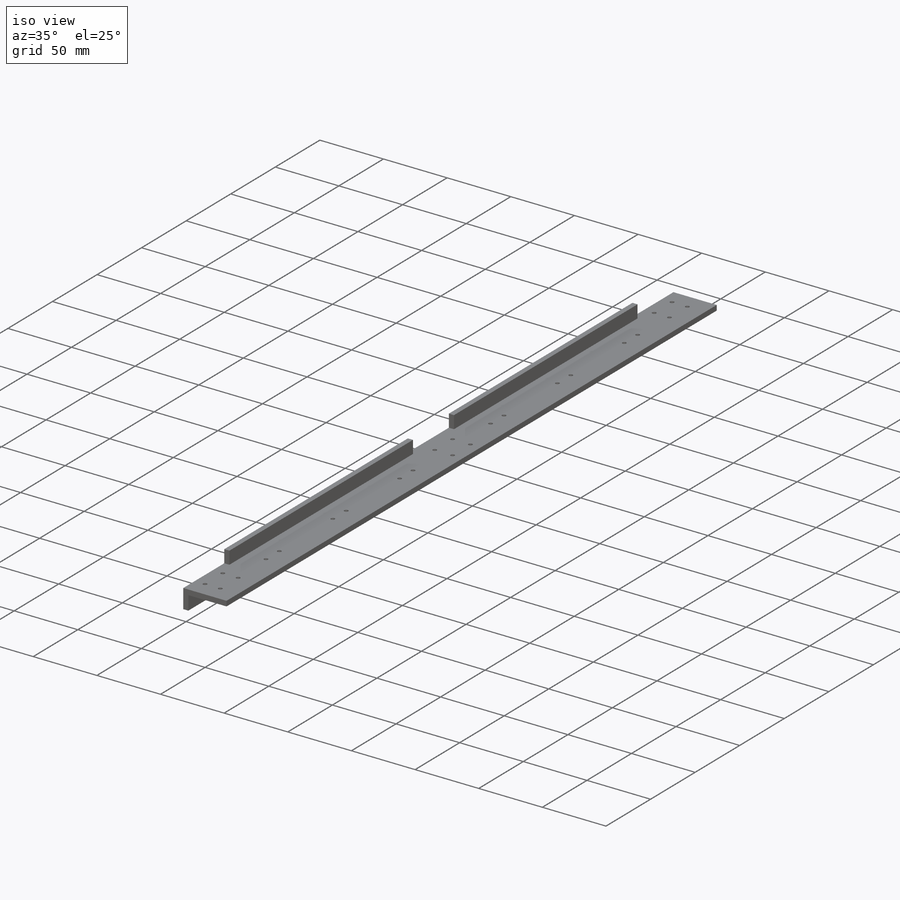
[diagram: iso view]
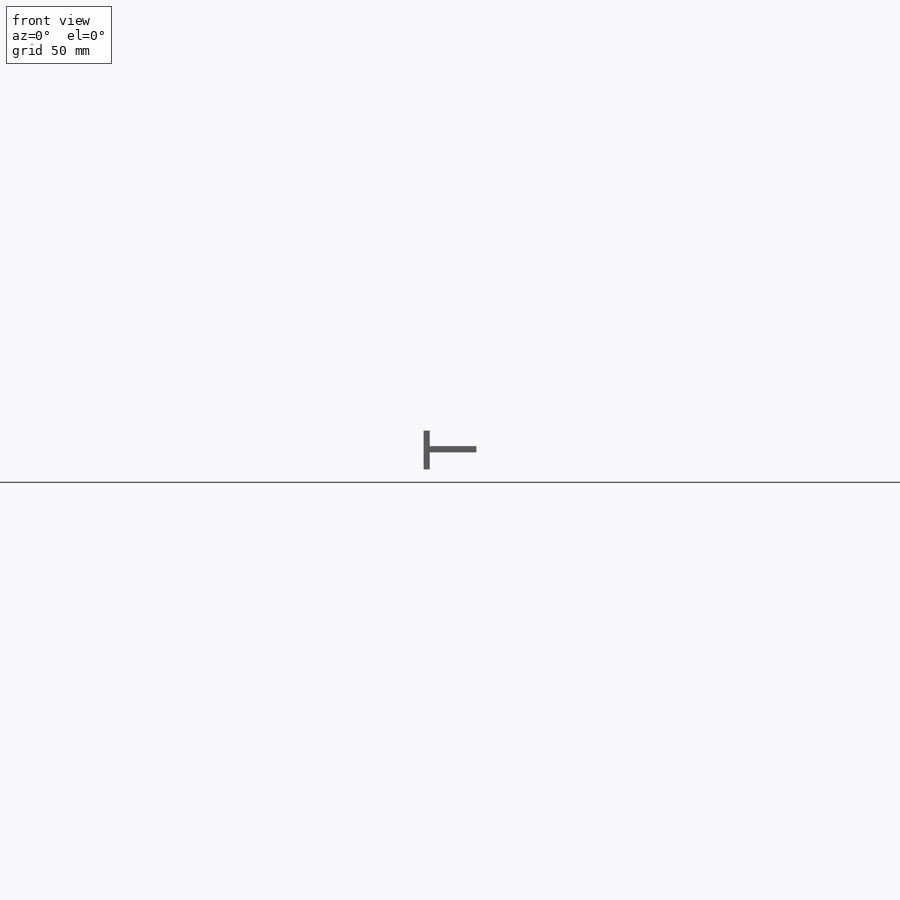
[diagram: front view]
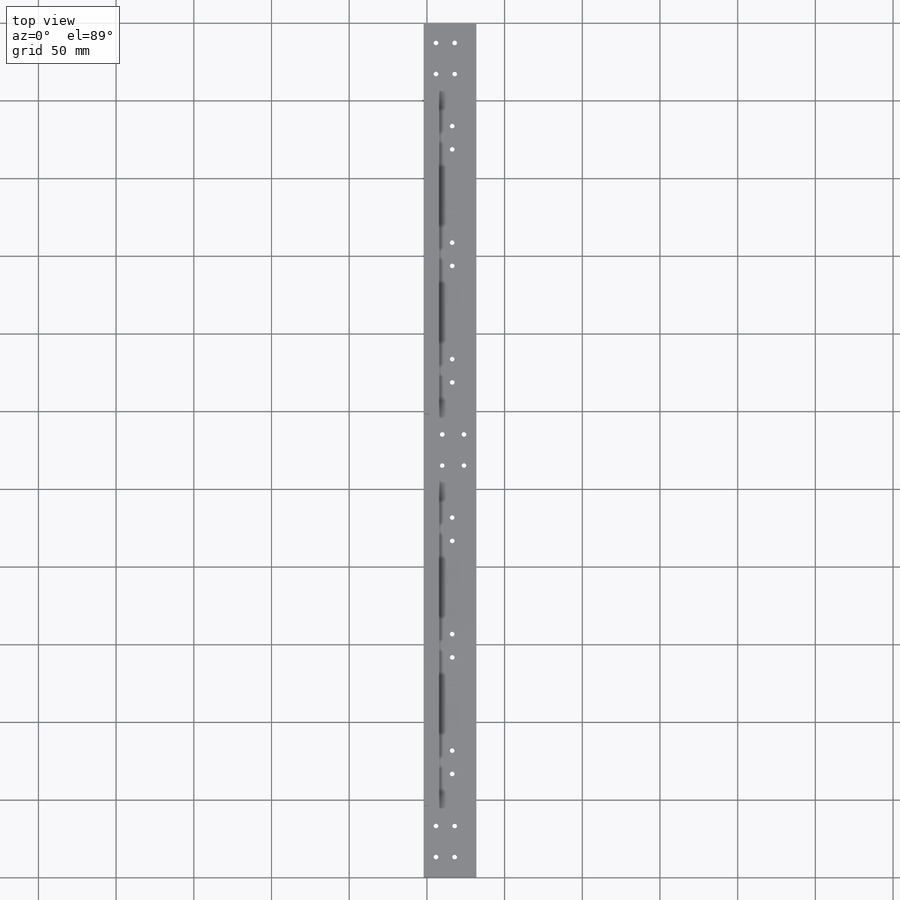
[diagram: top view]
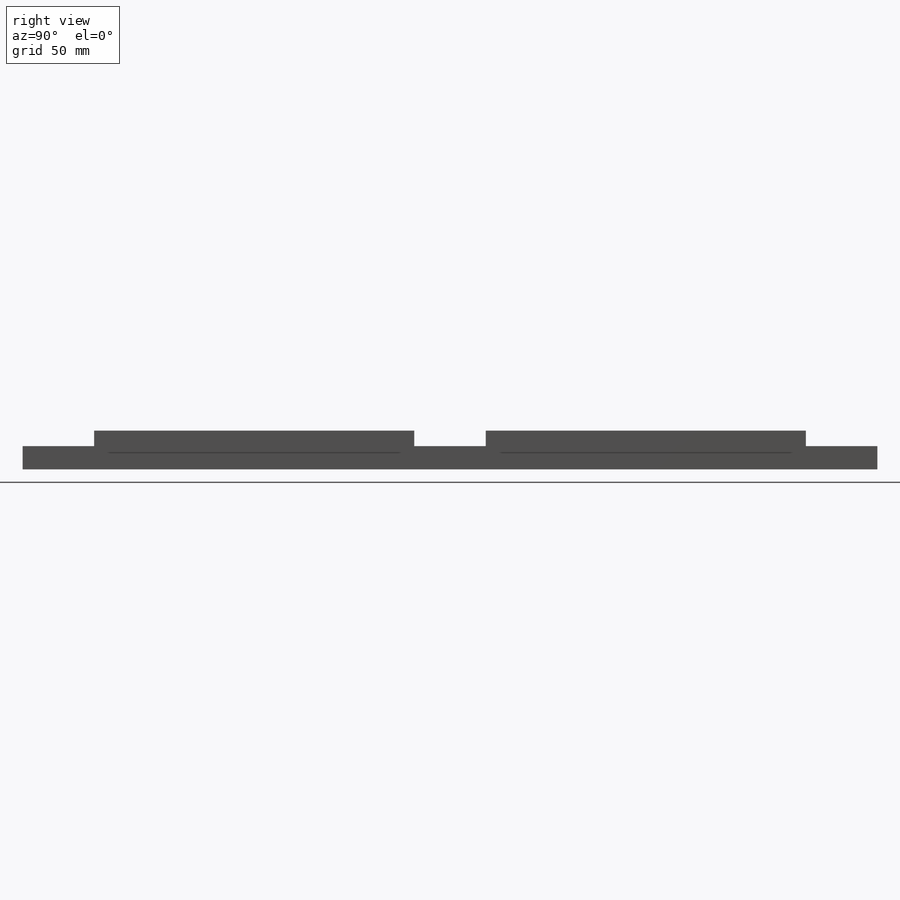
[diagram: right view]
SOLIDWORKS PART (.sldprt)
format: sldprt  version: not decoded by parser v0  size: 320,000 bytes
history: native  units: mm
features: sketch x11, hole x3, mirror x3, cut_extrude x2, material x1, extrude x1, plane x1 (+12 scaffold rows collapsed)
feature tree (34):
  scaffold x12  (default folders/planes/origin — collapsed)
  material  "Material <not specified>"
  sketch  "Sketch1"  dims[c1.D1=4.0mm c1.D2=4.0mm c1.D3=4.0mm c1.D4=~9.929886mm c2.D4=90.0deg c3.D4=30.0mm c3.D5=10.0mm c3.D6=25.0mm]
  extrude  "Boss-Extrude1"  Depth=550mm
  sketch  "Sketch2"  dims[D1=20.0mm D2=46.0mm]
  cut_extrude  "Cut-Extrude1"  [1 undecoded]
  sketch  "Sketch3"  dims[c1.D1=~23.788185mm c1.D2=~66.929273mm c2.D1=23.0mm]
  cut_extrude  "Cut-Extrude2"  [1 undecoded]
  hole  "Ø3.0mm Dowel Hole1"  Diameter=3mm Depth=15mm
  sketch  "Sketch7"  dims[c1.D1=4.0mm c1.D2=14.0mm c1.D3=14.0mm c1.D4=14.0mm c2.D3=20.0mm c2.D4=13.0mm]
  sketch  "Sketch6"  dims[hole-wizard template sketch: 50 standard entries collapsed; hole parameters above]
  sketch  "Sketch8"  dims[D1=~98.03844mm]
  sketch  "Sketch9"  dims[D1=~1.024321mm]
  plane  "Plane1"
  mirror  "Mirror2"
  hole  "Ø3.0mm Dowel Hole2"  Diameter=3mm Depth=15mm
  sketch  "Sketch11"  dims[D1=8.0mm D2=10.0mm D3=14.0mm]
  sketch  "Sketch10"  dims[hole-wizard template sketch: 50 standard entries collapsed; hole parameters above]
  mirror  "Mirror3"
  hole  "Ø3.0mm Dowel Hole3"  Diameter=3mm Depth=15mm
  sketch  "Sketch15"  dims[D1=15.0mm D2=15.0mm D3=15.0mm D4=60.0mm D5=60.0mm D6=20.5mm D7=~14.246229mm]
  sketch  "Sketch14"  dims[hole-wizard template sketch: 50 standard entries collapsed; hole parameters above]
  mirror  "Mirror4"
decode coverage: 15 of 20 modeling features carry decoded parameters
note: ~ marks probable driven/reference dimensions
note: 2 parameter values undecoded
note: suppression state not decoded; provenance and decode notes live in map.json
